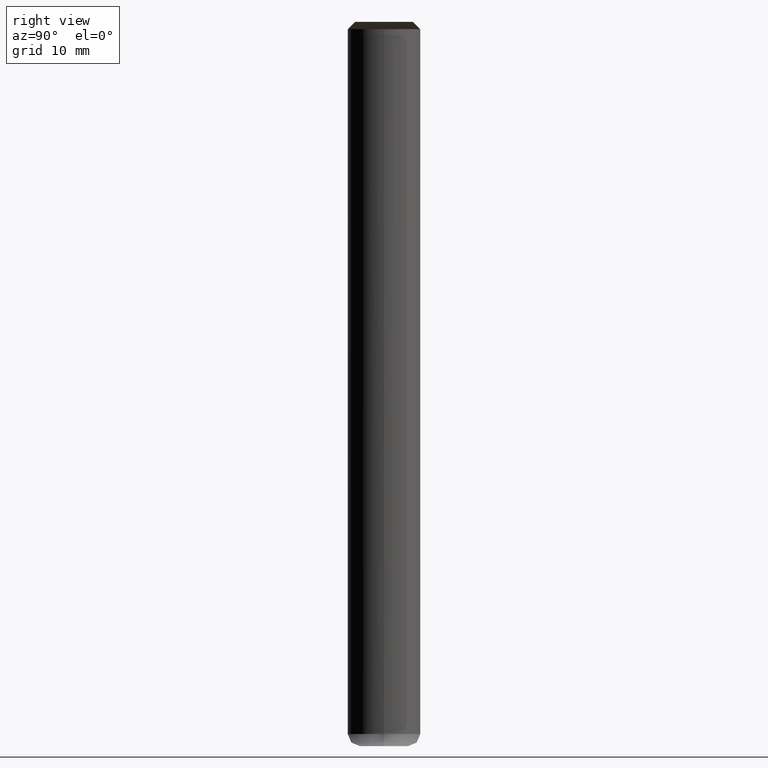
[diagram: clean part render]
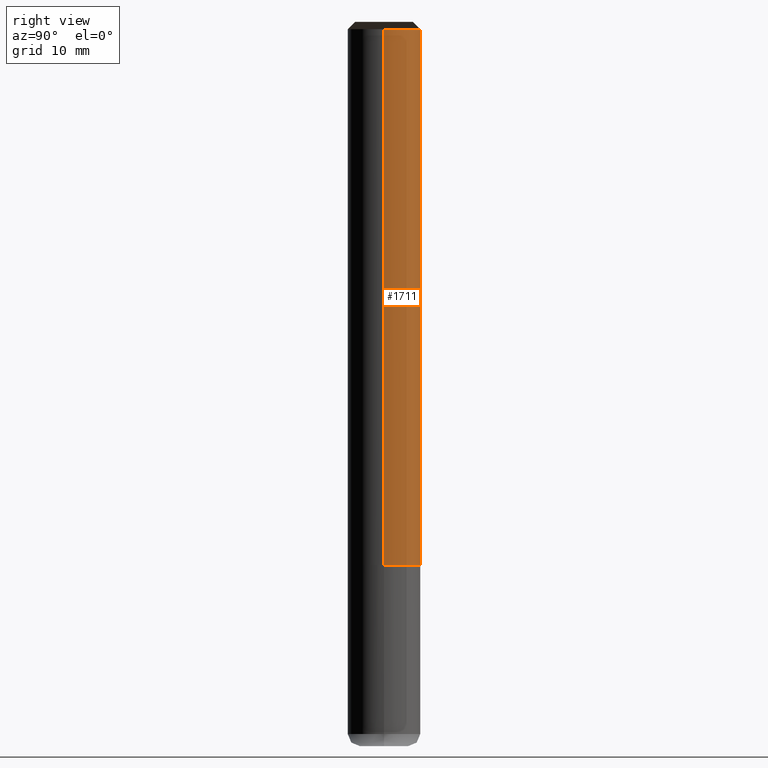
[diagram: same view with one face highlighted and labeled with its STEP entity id]
A machine part, right view. The second image highlights one B-rep face of the part: STEP entity #1711.
In plain terms, the highlighted face is a freeform B-spline surface patch.
Its self-contained STEP definition (entity closure, byte-faithful):
#1478=CARTESIAN_POINT('',(3.0,0.0,0.0));
#1479=CARTESIAN_POINT('',(3.0,3.0,0.0));
#1480=CARTESIAN_POINT('',(0.0,3.0,0.0));
#1481=CARTESIAN_POINT('',(-3.0,3.0,0.0));
#1482=CARTESIAN_POINT('',(-3.0,0.0,0.0));
#1502=CARTESIAN_POINT('',(3.0,0.0,44.4));
#1503=CARTESIAN_POINT('',(3.0,3.0,44.4));
#1504=CARTESIAN_POINT('',(0.0,3.0,44.4));
#1505=CARTESIAN_POINT('',(-3.0,3.0,44.4));
#1506=CARTESIAN_POINT('',(-3.0,0.0,44.4));
#1692=(
BOUNDED_SURFACE()
B_SPLINE_SURFACE(1,2,(
(#1478,#1479,#1480,#1481,#1482),
(#1502,#1503,#1504,#1505,#1506)
), .UNSPECIFIED.,.F.,.F.,.F.)
B_SPLINE_SURFACE_WITH_KNOTS((2,2),(3,2,3),(
0.0,1.0),(
0.0,0.5,1.0), .UNSPECIFIED.)
GEOMETRIC_REPRESENTATION_ITEM()
RATIONAL_B_SPLINE_SURFACE(((1.0,0.707106781187,1.0,0.707106781187,1.0),
(1.0,0.707106781187,1.0,0.707106781187,1.0)
))
REPRESENTATION_ITEM('')
SURFACE()
);
#1693=(
BOUNDED_CURVE()
B_SPLINE_CURVE(2,(#1502,#1503,#1504,#1505,#1506),.UNSPECIFIED.,.F.,.F.)
B_SPLINE_CURVE_WITH_KNOTS((3,2,3),
(0.0,0.5,1.0),.UNSPECIFIED.)
CURVE()
GEOMETRIC_REPRESENTATION_ITEM()
RATIONAL_B_SPLINE_CURVE((1.0,0.707106781187,1.0,0.707106781187,1.0))
REPRESENTATION_ITEM('')
);
#1694=(
BOUNDED_CURVE()
B_SPLINE_CURVE(1,(#1506,#1482),.UNSPECIFIED.,.F.,.F.)
B_SPLINE_CURVE_WITH_KNOTS((2,2),
(0.0,1.0),.UNSPECIFIED.)
CURVE()
GEOMETRIC_REPRESENTATION_ITEM()
RATIONAL_B_SPLINE_CURVE((1.0,1.0))
REPRESENTATION_ITEM('')
);
#1695=(
BOUNDED_CURVE()
B_SPLINE_CURVE(2,(#1482,#1481,#1480,#1479,#1478),.UNSPECIFIED.,.F.,.F.)
B_SPLINE_CURVE_WITH_KNOTS((3,2,3),
(0.0,0.5,1.0),.UNSPECIFIED.)
CURVE()
GEOMETRIC_REPRESENTATION_ITEM()
RATIONAL_B_SPLINE_CURVE((1.0,0.707106781187,1.0,0.707106781187,1.0))
REPRESENTATION_ITEM('')
);
#1696=(
BOUNDED_CURVE()
B_SPLINE_CURVE(1,(#1478,#1502),.UNSPECIFIED.,.F.,.F.)
B_SPLINE_CURVE_WITH_KNOTS((2,2),
(0.0,1.0),.UNSPECIFIED.)
CURVE()
GEOMETRIC_REPRESENTATION_ITEM()
RATIONAL_B_SPLINE_CURVE((1.0,1.0))
REPRESENTATION_ITEM('')
);
#1697=VERTEX_POINT('',#1478);
#1698=VERTEX_POINT('',#1482);
#1699=VERTEX_POINT('',#1502);
#1700=VERTEX_POINT('',#1506);
#1701=EDGE_CURVE('',#1699,#1700,#1693,.T.);
#1702=EDGE_CURVE('',#1700,#1698,#1694,.T.);
#1703=EDGE_CURVE('',#1698,#1697,#1695,.T.);
#1704=EDGE_CURVE('',#1697,#1699,#1696,.T.);
#1705=ORIENTED_EDGE('',*,*,#1701,.T.);
#1706=ORIENTED_EDGE('',*,*,#1702,.T.);
#1707=ORIENTED_EDGE('',*,*,#1703,.T.);
#1708=ORIENTED_EDGE('',*,*,#1704,.T.);
#1709=EDGE_LOOP('',(#1705,#1706,#1707,#1708));
#1710=FACE_OUTER_BOUND('',#1709,.T.);
#1711=ADVANCED_FACE('',(#1710),#1692,.T.);